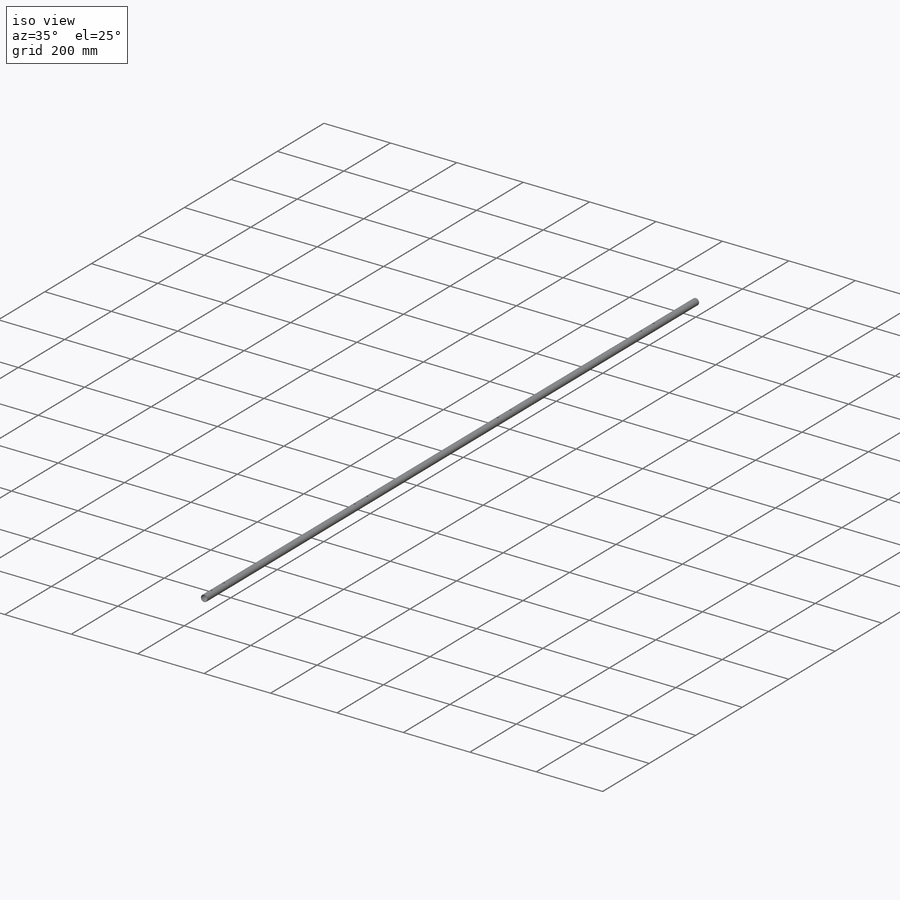
[diagram: iso view]
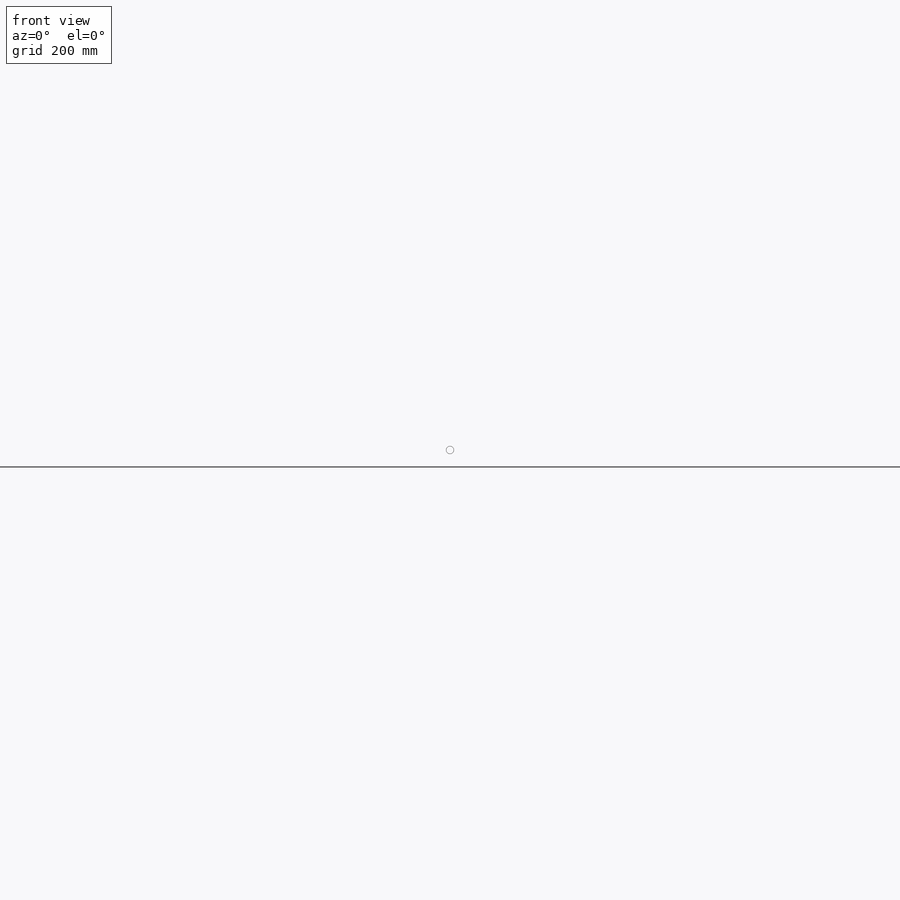
[diagram: front view]
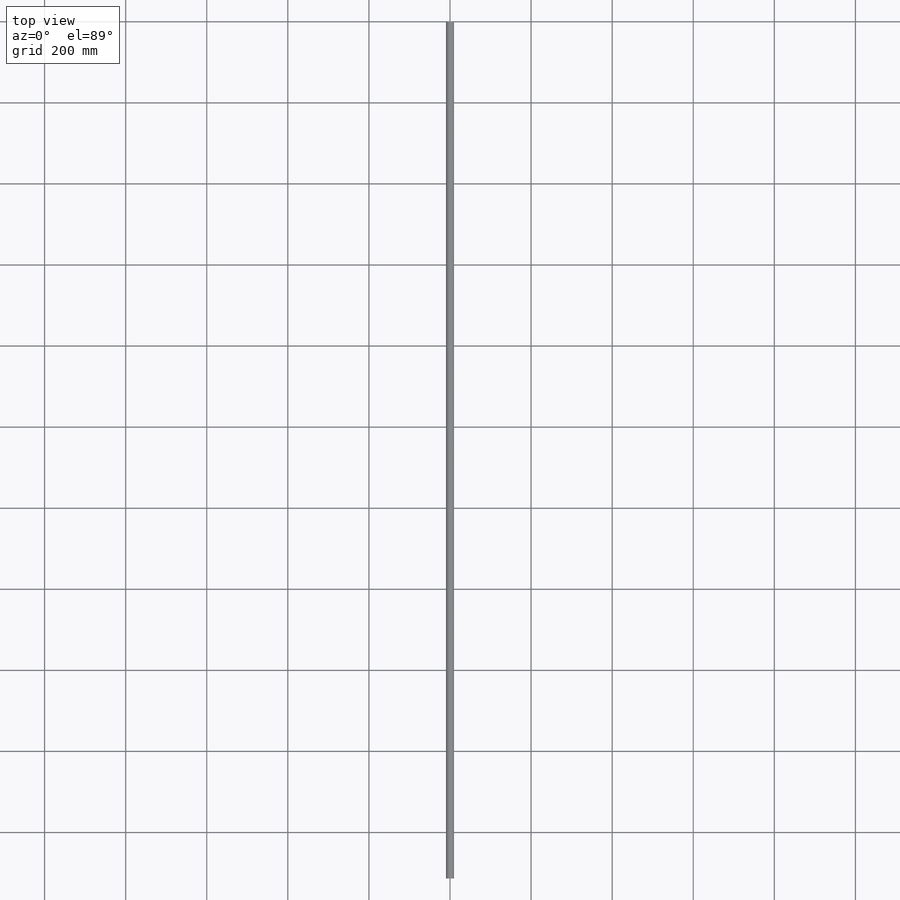
[diagram: top view]
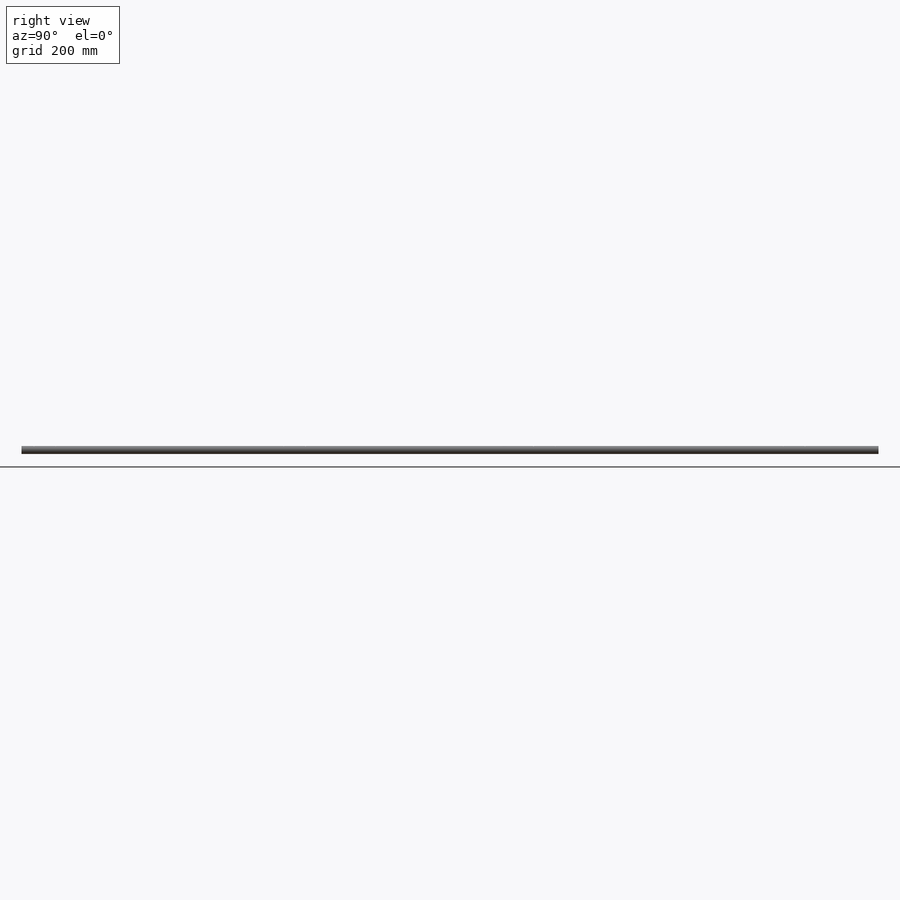
[diagram: right view]
SOLIDWORKS PART (.sldprt)
format: sldprt  version: not decoded by parser v0  size: 199,680 bytes
history: native  units: mm
features: sketch x4, material x1, hole x1, pattern_linear x1 (+11 scaffold rows collapsed)
feature tree (18):
  scaffold x11  (default folders/planes/origin — collapsed)
  material  "Material <not specified>"
  sketch  "Sketch1"  dims[c1.D1=20.0mm c2.D1=2114.0mm c2.D5=1.0mm c2.D6=1.0mm c2.D7=5.0mm]
  sketch  "Sketch2"  dims[D1=54.0mm D2=208.1mm]
  hole  "#10 Clearance Hole1"  Diameter=5.1054mm Depth=10mm
  sketch  "3DSketch2"
  sketch  "Sketch4"  dims[hole-wizard template sketch: 47 standard entries collapsed; hole parameters kept: c15.Hole Depth=10.0mm c15.D3=~14.816244mm c15.Drill Angle=118.0deg]
  pattern_linear  "LPattern1"  Count1=4 Count2=1 Spacing1=616mm Spacing2=10mm
decode coverage: 5 of 6 modeling features carry decoded parameters
note: ~ marks probable driven/reference dimensions
note: suppression state not decoded; provenance and decode notes live in map.json
